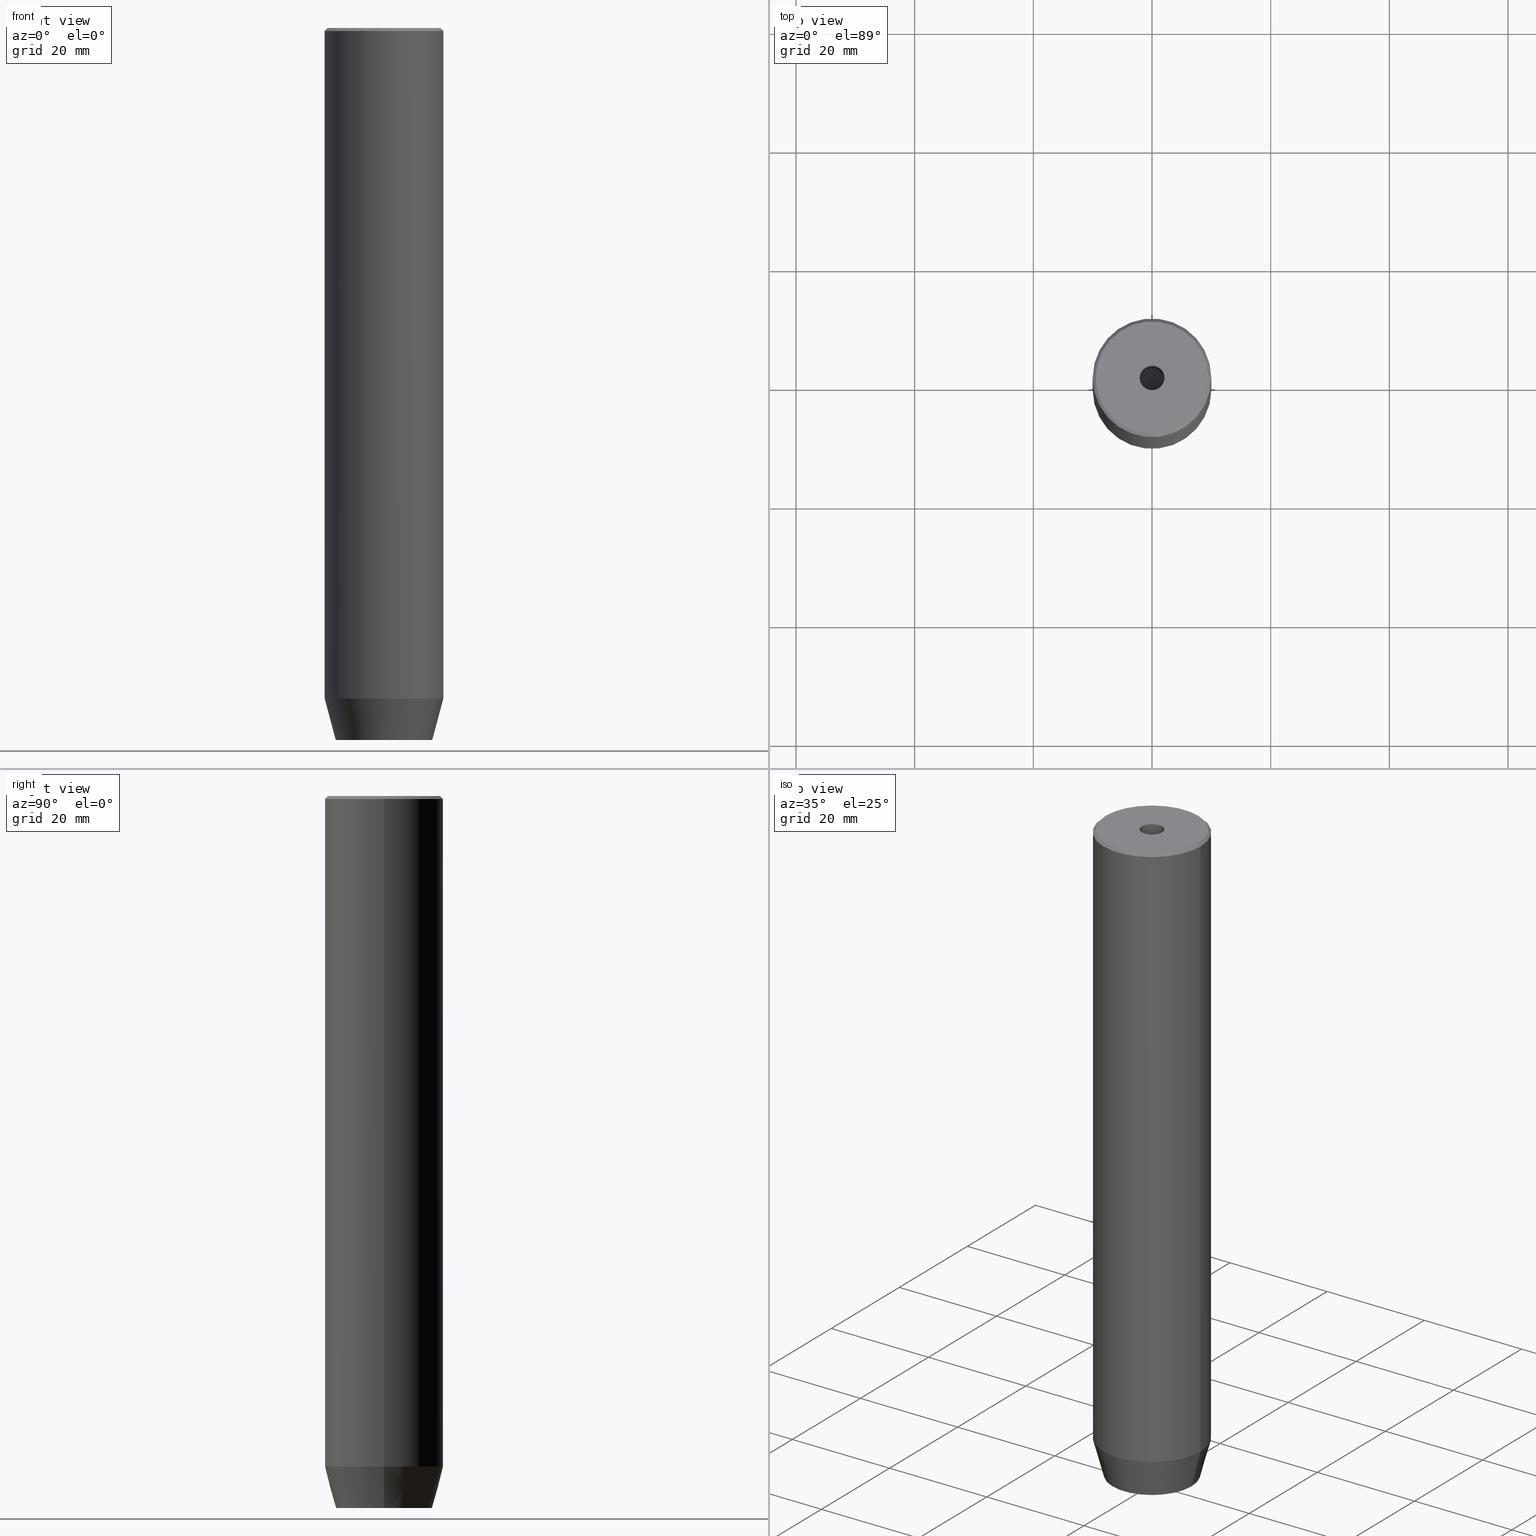
[diagram: canonical four-view strip — front | top / right | iso, engineering-drawing reading convention]
A machine part, canonical four-view strip (front | top / right | iso — engineering-drawing reading convention). The complete STEP part file that produces these views, byte-faithful:
ISO-10303-21;
HEADER;
FILE_DESCRIPTION (( 'STEP AP203' ),
    '1' );
FILE_NAME ('62bc.STEP',
    '2024-01-02T19:05:04',
    ( '' ),
    ( '' ),
    'SwSTEP 2.0',
    'SolidWorks 2019',
    '' );
FILE_SCHEMA (( 'CONFIG_CONTROL_DESIGN' ));
ENDSEC;

DATA;
#1 = VERTEX_POINT ( 'NONE', #94 ) ;
#2 = LINE ( 'NONE', #57, #301 ) ;
#3 = ADVANCED_FACE ( 'NONE', ( #39 ), #184, .T. ) ;
#4 = ORIENTED_EDGE ( 'NONE', *, *, #272, .T. ) ;
#5 = DIRECTION ( 'NONE',  ( -1.000000000000000000, 0.000000000000000000, -0.000000000000000000 ) ) ;
#6 = CC_DESIGN_SECURITY_CLASSIFICATION ( #474, ( #548 ) ) ;
#7 = ORIENTED_EDGE ( 'NONE', *, *, #308, .F. ) ;
#8 = CARTESIAN_POINT ( 'NONE',  ( 0.000000000000000000, 0.000000000000000000, -25.00000000000000000 ) ) ;
#9 = CARTESIAN_POINT ( 'NONE',  ( 0.000000000000000000, 4.618802153517006737, -117.2000000000000028 ) ) ;
#10 = ORIENTED_EDGE ( 'NONE', *, *, #241, .F. ) ;
#11 = EDGE_CURVE ( 'NONE', #503, #431, #248, .T. ) ;
#12 = CARTESIAN_POINT ( 'NONE',  ( 0.000000000000000000, 0.000000000000000000, 0.000000000000000000 ) ) ;
#13 = ORIENTED_EDGE ( 'NONE', *, *, #326, .F. ) ;
#14 = EDGE_LOOP ( 'NONE', ( #232, #7, #337, #369 ) ) ;
#15 = CARTESIAN_POINT ( 'NONE',  ( -2.099999999999998757, 2.571758278209440478E-16, -1.990051048614449116E-16 ) ) ;
#16 = CARTESIAN_POINT ( 'NONE',  ( 0.000000000000000000, 4.618802153517006737, -117.2000000000000028 ) ) ;
#17 = ORIENTED_EDGE ( 'NONE', *, *, #211, .F. ) ;
#18 = APPROVAL_ROLE ( '' ) ;
#19 = ORIENTED_EDGE ( 'NONE', *, *, #97, .F. ) ;
#20 = FACE_OUTER_BOUND ( 'NONE', #14, .T. ) ;
#21 = AXIS2_PLACEMENT_3D ( 'NONE', #352, #524, #520 ) ;
#22 = CARTESIAN_POINT ( 'NONE',  ( 10.00000000000000000, 0.000000000000000000, 0.000000000000000000 ) ) ;
#23 = VECTOR ( 'NONE', #476, 1000.000000000000000 ) ;
#24 = APPLICATION_PROTOCOL_DEFINITION ( 'international standard', 'config_control_design', 1994, #47 ) ;
#25 = DIRECTION ( 'NONE',  ( -1.000000000000000000, 0.000000000000000000, 0.000000000000000000 ) ) ;
#26 = APPROVAL_DATE_TIME ( #568, #205 ) ;
#27 = EDGE_CURVE ( 'NONE', #186, #104, #553, .T. ) ;
#28 = CARTESIAN_POINT ( 'NONE',  ( 2.000000000000000444, 3.464101615137754386, -117.2000000000000028 ) ) ;
#29 = CALENDAR_DATE ( 2024, 2, 1 ) ;
#30 = ORIENTED_EDGE ( 'NONE', *, *, #97, .T. ) ;
#31 = PRODUCT ( '62bc', '62bc', '', ( #554 ) ) ;
#32 = AXIS2_PLACEMENT_3D ( 'NONE', #8, #203, #200 ) ;
#33 = CARTESIAN_POINT ( 'NONE',  ( -4.000000000000000000, 2.309401076758503368, -120.0000000000000000 ) ) ;
#34 = DATE_TIME_ROLE ( 'creation_date' ) ;
#35 = DIRECTION ( 'NONE',  ( -0.000000000000000000, -0.000000000000000000, -1.000000000000000000 ) ) ;
#36 = ADVANCED_FACE ( 'NONE', ( #340 ), #99, .F. ) ;
#37 = DIRECTION ( 'NONE',  ( 1.000000000000000000, 0.000000000000000000, 0.000000000000000000 ) ) ;
#38 = ORIENTED_EDGE ( 'NONE', *, *, #149, .F. ) ;
#39 = FACE_OUTER_BOUND ( 'NONE', #295, .T. ) ;
#40 = VERTEX_POINT ( 'NONE', #136 ) ;
#41 = CARTESIAN_POINT ( 'NONE',  ( 2.099999999999996980, 0.000000000000000000, 0.000000000000000000 ) ) ;
#42 = CARTESIAN_POINT ( 'NONE',  ( -2.000000000000000888, -3.464101615137754386, -117.2000000000000028 ) ) ;
#43 = CIRCLE ( 'NONE', #32, 2.099999999999995648 ) ;
#44 = FACE_OUTER_BOUND ( 'NONE', #422, .T. ) ;
#45 = ADVANCED_FACE ( 'NONE', ( #322 ), #392, .T. ) ;
#46 = AXIS2_PLACEMENT_3D ( 'NONE', #377, #123, #492 ) ;
#47 = APPLICATION_CONTEXT ( 'configuration controlled 3d designs of mechanical parts and assemblies' ) ;
#48 = DIRECTION ( 'NONE',  ( 0.000000000000000000, -1.000000000000000000, 0.000000000000000000 ) ) ;
#49 = LINE ( 'NONE', #335, #381 ) ;
#50 = ORIENTED_EDGE ( 'NONE', *, *, #320, .F. ) ;
#51 = CONICAL_SURFACE ( 'NONE', #531, 10.00000000000000000, 0.2617993877991500740 ) ;
#52 = AXIS2_PLACEMENT_3D ( 'NONE', #465, #102, #151 ) ;
#53 = DIRECTION ( 'NONE',  ( -0.000000000000000000, -0.000000000000000000, 1.000000000000000000 ) ) ;
#54 = EDGE_CURVE ( 'NONE', #479, #506, #78, .T. ) ;
#55 = ORIENTED_EDGE ( 'NONE', *, *, #456, .F. ) ;
#56 = DIRECTION ( 'NONE',  ( 0.000000000000000000, 0.000000000000000000, 1.000000000000000000 ) ) ;
#57 = CARTESIAN_POINT ( 'NONE',  ( -4.000000000000000000, -2.309401076758503368, -117.2000000000000028 ) ) ;
#58 = LINE ( 'NONE', #9, #457 ) ;
#59 = VECTOR ( 'NONE', #539, 1000.000000000000114 ) ;
#60 = FACE_OUTER_BOUND ( 'NONE', #298, .T. ) ;
#61 = ORIENTED_EDGE ( 'NONE', *, *, #251, .F. ) ;
#62 = CARTESIAN_POINT ( 'NONE',  ( 0.000000000000000000, 0.000000000000000000, -25.00000000000000000 ) ) ;
#63 = EDGE_LOOP ( 'NONE', ( #473, #61, #523, #38 ) ) ;
#64 =( LENGTH_UNIT ( ) NAMED_UNIT ( * ) SI_UNIT ( .MILLI., .METRE. ) );
#65 = PLANE ( 'NONE',  #244 ) ;
#66 = VERTEX_POINT ( 'NONE', #443 ) ;
#67 = MANIFOLD_SOLID_BREP ( 'Vrt�k z�vitn�ku pro M5 z�vit1', #373 ) ;
#68 = FACE_OUTER_BOUND ( 'NONE', #489, .T. ) ;
#69 = DIRECTION ( 'NONE',  ( 0.000000000000000000, 0.000000000000000000, -1.000000000000000000 ) ) ;
#70 = ORIENTED_EDGE ( 'NONE', *, *, #536, .F. ) ;
#71 = CIRCLE ( 'NONE', #21, 10.00000000000000000 ) ;
#72 = LOCAL_TIME ( 20, 5, 4.000000000000000000, #270 ) ;
#73 = EDGE_CURVE ( 'NONE', #66, #312, #221, .T. ) ;
#74 = DIRECTION ( 'NONE',  ( 1.000000000000000000, 0.000000000000000000, 0.000000000000000000 ) ) ;
#75 = PERSON_AND_ORGANIZATION ( #98, #509 ) ;
#76 = DIRECTION ( 'NONE',  ( -0.8660254037844385966, 0.5000000000000001110, 0.000000000000000000 ) ) ;
#77 = APPROVAL_DATE_TIME ( #126, #421 ) ;
#78 = LINE ( 'NONE', #218, #345 ) ;
#79 = FACE_OUTER_BOUND ( 'NONE', #88, .T. ) ;
#80 = ADVANCED_FACE ( 'NONE', ( #580 ), #583, .F. ) ;
#81 = AXIS2_PLACEMENT_3D ( 'NONE', #353, #484, #74 ) ;
#82 = ORIENTED_EDGE ( 'NONE', *, *, #54, .T. ) ;
#83 = CARTESIAN_POINT ( 'NONE',  ( 10.00000000000000000, 0.000000000000000000, -112.9999999999999858 ) ) ;
#84 = AXIS2_PLACEMENT_3D ( 'NONE', #249, #423, #198 ) ;
#85 = ORIENTED_EDGE ( 'NONE', *, *, #505, .T. ) ;
#86 = LINE ( 'NONE', #243, #237 ) ;
#87 = EDGE_LOOP ( 'NONE', ( #4, #324, #267, #172 ) ) ;
#88 = EDGE_LOOP ( 'NONE', ( #113, #50, #17, #281 ) ) ;
#89 = DIRECTION ( 'NONE',  ( -0.000000000000000000, -0.000000000000000000, -1.000000000000000000 ) ) ;
#90 = DIRECTION ( 'NONE',  ( 1.000000000000000000, 0.000000000000000000, 0.000000000000000000 ) ) ;
#91 = AXIS2_PLACEMENT_3D ( 'NONE', #288, #454, #414 ) ;
#92 = VECTOR ( 'NONE', #393, 1000.000000000000000 ) ;
#93 = ADVANCED_FACE ( 'NONE', ( #68 ), #217, .F. ) ;
#94 = CARTESIAN_POINT ( 'NONE',  ( 2.168404344971008868E-16, 4.618802153517005848, -120.0000000000000000 ) ) ;
#95 = PLANE ( 'NONE',  #587 ) ;
#96 = DIRECTION ( 'NONE',  ( 1.000000000000000000, 0.000000000000000000, 0.000000000000000000 ) ) ;
#97 = EDGE_CURVE ( 'NONE', #246, #506, #263, .T. ) ;
#98 = PERSON ( 'NEUR�EN�', 'NEUR�EN�', 'NEUR�EN�', ('NEUR�EN�'), ('NEUR�EN�'), ('NEUR�EN�') ) ;
#99 = CYLINDRICAL_SURFACE ( 'NONE', #271, 2.099999999999996980 ) ;
#100 = DIRECTION ( 'NONE',  ( 1.000000000000000000, 0.000000000000000000, 0.000000000000000000 ) ) ;
#101 = AXIS2_PLACEMENT_3D ( 'NONE', #137, #383, #550 ) ;
#102 = DIRECTION ( 'NONE',  ( -0.000000000000000000, -0.000000000000000000, 1.000000000000000000 ) ) ;
#103 = DIRECTION ( 'NONE',  ( -0.000000000000000000, -0.000000000000000000, 1.000000000000000000 ) ) ;
#104 = VERTEX_POINT ( 'NONE', #33 ) ;
#105 = CARTESIAN_POINT ( 'NONE',  ( 2.099999999999995648, 0.000000000000000000, -25.00000000000000000 ) ) ;
#106 = DIRECTION ( 'NONE',  ( 1.000000000000000000, 0.000000000000000000, 0.000000000000000000 ) ) ;
#107 = CARTESIAN_POINT ( 'NONE',  ( 0.000000000000000000, 0.000000000000000000, -120.0000000000000000 ) ) ;
#108 = EDGE_CURVE ( 'NONE', #289, #506, #269, .T. ) ;
#109 = DIRECTION ( 'NONE',  ( 1.000000000000000000, 0.000000000000000000, 0.000000000000000000 ) ) ;
#110 = AXIS2_PLACEMENT_3D ( 'NONE', #107, #160, #257 ) ;
#111 = CARTESIAN_POINT ( 'NONE',  ( 2.099999999999998757, 0.000000000000000000, -1.990051048614449116E-16 ) ) ;
#112 = CARTESIAN_POINT ( 'NONE',  ( -4.000000000000000000, -2.309401076758503368, -117.2000000000000028 ) ) ;
#113 = ORIENTED_EDGE ( 'NONE', *, *, #430, .T. ) ;
#114 = ORIENTED_EDGE ( 'NONE', *, *, #395, .F. ) ;
#115 = LINE ( 'NONE', #177, #586 ) ;
#116 = SHAPE_DEFINITION_REPRESENTATION ( #438, #491 ) ;
#117 = EDGE_LOOP ( 'NONE', ( #266, #70 ) ) ;
#118 = EDGE_CURVE ( 'NONE', #316, #529, #265, .T. ) ;
#119 = AXIS2_PLACEMENT_3D ( 'NONE', #28, #434, #76 ) ;
#120 = CARTESIAN_POINT ( 'NONE',  ( -10.00000000000000000, 1.224646799147353256E-15, -112.9999999999999858 ) ) ;
#121 = VECTOR ( 'NONE', #371, 1000.000000000000000 ) ;
#122 = CALENDAR_DATE ( 2024, 2, 1 ) ;
#123 = DIRECTION ( 'NONE',  ( 0.5000000000000003331, -0.8660254037844385966, 0.000000000000000000 ) ) ;
#124 = EDGE_LOOP ( 'NONE', ( #327, #402, #361, #280, #114, #199 ) ) ;
#125 = VERTEX_POINT ( 'NONE', #111 ) ;
#126 = DATE_AND_TIME ( #355, #305 ) ;
#127 = DIRECTION ( 'NONE',  ( 0.8660254037844385966, -0.5000000000000001110, 0.000000000000000000 ) ) ;
#128 = ORIENTED_EDGE ( 'NONE', *, *, #194, .F. ) ;
#129 = EDGE_CURVE ( 'NONE', #191, #125, #173, .T. ) ;
#130 = APPROVAL_ROLE ( '' ) ;
#131 = CYLINDRICAL_SURFACE ( 'NONE', #494, 10.00000000000000000 ) ;
#132 = VERTEX_POINT ( 'NONE', #567 ) ;
#133 = PLANE ( 'NONE',  #303 ) ;
#134 = VECTOR ( 'NONE', #157, 1000.000000000000000 ) ;
#135 = ORIENTED_EDGE ( 'NONE', *, *, #512, .T. ) ;
#136 = CARTESIAN_POINT ( 'NONE',  ( -10.00000000000000000, 1.224646799147353256E-15, -112.9999999999999858 ) ) ;
#137 = CARTESIAN_POINT ( 'NONE',  ( 0.000000000000000000, 0.000000000000000000, -112.9999999999999858 ) ) ;
#138 = AXIS2_PLACEMENT_3D ( 'NONE', #518, #426, #5 ) ;
#139 = VERTEX_POINT ( 'NONE', #526 ) ;
#140 = CARTESIAN_POINT ( 'NONE',  ( 0.000000000000000000, 0.000000000000000000, 0.000000000000000000 ) ) ;
#141 = CARTESIAN_POINT ( 'NONE',  ( -4.000000000000000000, 2.309401076758503368, -117.2000000000000028 ) ) ;
#142 = ORIENTED_EDGE ( 'NONE', *, *, #73, .T. ) ;
#143 = EDGE_CURVE ( 'NONE', #182, #40, #569, .T. ) ;
#144 = FACE_OUTER_BOUND ( 'NONE', #117, .T. ) ;
#145 = VERTEX_POINT ( 'NONE', #16 ) ;
#146 = CARTESIAN_POINT ( 'NONE',  ( 4.000000000000000000, 2.309401076758503368, -117.2000000000000028 ) ) ;
#147 = VECTOR ( 'NONE', #230, 1000.000000000000000 ) ;
#148 = DIRECTION ( 'NONE',  ( 0.2588190451025213501, 0.000000000000000000, 0.9659258262890680902 ) ) ;
#149 = EDGE_CURVE ( 'NONE', #506, #246, #462, .T. ) ;
#150 = EDGE_LOOP ( 'NONE', ( #10, #82, #19, #128 ) ) ;
#151 = DIRECTION ( 'NONE',  ( 1.000000000000000000, 0.000000000000000000, 0.000000000000000000 ) ) ;
#152 = VECTOR ( 'NONE', #35, 1000.000000000000000 ) ;
#153 = CIRCLE ( 'NONE', #52, 8.124355652982135467 ) ;
#154 = CARTESIAN_POINT ( 'NONE',  ( 4.000000000000000000, -2.309401076758502480, -120.0000000000000000 ) ) ;
#155 = VECTOR ( 'NONE', #224, 1000.000000000000114 ) ;
#156 = ADVANCED_FACE ( 'NONE', ( #168, #176 ), #133, .T. ) ;
#157 = DIRECTION ( 'NONE',  ( -0.000000000000000000, -0.000000000000000000, 1.000000000000000000 ) ) ;
#158 = CARTESIAN_POINT ( 'NONE',  ( 4.336808689942017736E-16, -4.618802153517006737, -117.2000000000000028 ) ) ;
#159 = CARTESIAN_POINT ( 'NONE',  ( -4.000000000000000000, 0.000000000000000000, -120.0000000000000000 ) ) ;
#160 = DIRECTION ( 'NONE',  ( -0.000000000000000000, -0.000000000000000000, 1.000000000000000000 ) ) ;
#161 = ORIENTED_EDGE ( 'NONE', *, *, #490, .T. ) ;
#162 = ORIENTED_EDGE ( 'NONE', *, *, #227, .T. ) ;
#163 = LINE ( 'NONE', #349, #183 ) ;
#164 = AXIS2_PLACEMENT_3D ( 'NONE', #475, #276, #453 ) ;
#165 = CC_DESIGN_APPROVAL ( #205, ( #548 ) ) ;
#166 = FACE_OUTER_BOUND ( 'NONE', #240, .T. ) ;
#167 = CC_DESIGN_PERSON_AND_ORGANIZATION_ASSIGNMENT ( #75, #358, ( #31 ) ) ;
#168 = FACE_BOUND ( 'NONE', #436, .T. ) ;
#169 = DIRECTION ( 'NONE',  ( 0.000000000000000000, 0.000000000000000000, -1.000000000000000000 ) ) ;
#170 = CALENDAR_DATE ( 2024, 2, 1 ) ;
#171 = ORIENTED_EDGE ( 'NONE', *, *, #374, .F. ) ;
#172 = ORIENTED_EDGE ( 'NONE', *, *, #118, .T. ) ;
#173 = CIRCLE ( 'NONE', #549, 2.099999999999998757 ) ;
#174 = DATE_TIME_ROLE ( 'classification_date' ) ;
#175 = PERSON_AND_ORGANIZATION ( #98, #509 ) ;
#176 = FACE_OUTER_BOUND ( 'NONE', #360, .T. ) ;
#177 = CARTESIAN_POINT ( 'NONE',  ( -2.000000000000000000, 3.464101615137754830, -117.2000000000000028 ) ) ;
#178 = ORIENTED_EDGE ( 'NONE', *, *, #259, .T. ) ;
#179 = ORIENTED_EDGE ( 'NONE', *, *, #73, .F. ) ;
#180 = DIRECTION ( 'NONE',  ( 0.000000000000000000, 0.000000000000000000, 1.000000000000000000 ) ) ;
#181 = UNCERTAINTY_MEASURE_WITH_UNIT (LENGTH_MEASURE( 1.000000000000000082E-05 ), #64, 'distance_accuracy_value', 'NONE');
#182 = VERTEX_POINT ( 'NONE', #204 ) ;
#183 = VECTOR ( 'NONE', #351, 1000.000000000000114 ) ;
#184 = CYLINDRICAL_SURFACE ( 'NONE', #556, 10.00000000000000000 ) ;
#185 =( GEOMETRIC_REPRESENTATION_CONTEXT ( 3 ) GLOBAL_UNCERTAINTY_ASSIGNED_CONTEXT ( ( #181 ) ) GLOBAL_UNIT_ASSIGNED_CONTEXT ( ( #64, #346, #472 ) ) REPRESENTATION_CONTEXT ( 'NONE', 'WORKASPACE' ) );
#186 = VERTEX_POINT ( 'NONE', #325 ) ;
#187 = DIRECTION ( 'NONE',  ( -0.000000000000000000, 0.000000000000000000, -1.000000000000000000 ) ) ;
#188 = EDGE_CURVE ( 'NONE', #1, #139, #409, .T. ) ;
#189 = DIRECTION ( 'NONE',  ( 1.000000000000000000, 0.000000000000000000, 0.000000000000000000 ) ) ;
#190 = LINE ( 'NONE', #41, #121 ) ;
#191 = VERTEX_POINT ( 'NONE', #15 ) ;
#192 = FACE_OUTER_BOUND ( 'NONE', #212, .T. ) ;
#193 = CIRCLE ( 'NONE', #563, 9.499999999999980460 ) ;
#194 = EDGE_CURVE ( 'NONE', #132, #246, #450, .T. ) ;
#195 = VECTOR ( 'NONE', #578, 999.9999999999998863 ) ;
#196 = CYLINDRICAL_SURFACE ( 'NONE', #389, 2.099999999999996980 ) ;
#197 = CC_DESIGN_PERSON_AND_ORGANIZATION_ASSIGNMENT ( #216, #404, ( #548 ) ) ;
#198 = DIRECTION ( 'NONE',  ( -1.000000000000000000, 0.000000000000000000, 0.000000000000000000 ) ) ;
#199 = ORIENTED_EDGE ( 'NONE', *, *, #188, .F. ) ;
#200 = DIRECTION ( 'NONE',  ( 1.000000000000000000, 0.000000000000000000, 0.000000000000000000 ) ) ;
#201 = LOCAL_TIME ( 20, 5, 4.000000000000000000, #447 ) ;
#202 = EDGE_CURVE ( 'NONE', #145, #503, #488, .T. ) ;
#203 = DIRECTION ( 'NONE',  ( -0.000000000000000000, -0.000000000000000000, 1.000000000000000000 ) ) ;
#204 = CARTESIAN_POINT ( 'NONE',  ( -8.124355652982135467, 1.109796706851640556E-15, -120.0000000000000000 ) ) ;
#205 = APPROVAL ( #535, 'NEUR�EN�' ) ;
#206 = CARTESIAN_POINT ( 'NONE',  ( -4.000000000000000000, 0.000000000000000000, -117.2000000000000028 ) ) ;
#207 = VERTEX_POINT ( 'NONE', #154 ) ;
#208 = LINE ( 'NONE', #344, #367 ) ;
#209 = DATE_AND_TIME ( #170, #420 ) ;
#210 = ORIENTED_EDGE ( 'NONE', *, *, #11, .T. ) ;
#211 = EDGE_CURVE ( 'NONE', #348, #145, #115, .T. ) ;
#212 = EDGE_LOOP ( 'NONE', ( #135, #343, #495, #485 ) ) ;
#213 = DIRECTION ( 'NONE',  ( -0.5000000000000000000, 0.8660254037844387076, 0.000000000000000000 ) ) ;
#214 = VECTOR ( 'NONE', #225, 1000.000000000000000 ) ;
#215 = CARTESIAN_POINT ( 'NONE',  ( 0.000000000000000000, 0.000000000000000000, -1.990051048614449116E-16 ) ) ;
#216 = PERSON_AND_ORGANIZATION ( #98, #509 ) ;
#217 = PLANE ( 'NONE',  #119 ) ;
#218 = CARTESIAN_POINT ( 'NONE',  ( 9.499999999999980460, 1.163414459189983119E-15, 0.000000000000000000 ) ) ;
#219 = CC_DESIGN_PERSON_AND_ORGANIZATION_ASSIGNMENT ( #487, #522, ( #474 ) ) ;
#220 = PERSON_AND_ORGANIZATION ( #98, #509 ) ;
#221 = LINE ( 'NONE', #532, #155 ) ;
#222 = PERSON_AND_ORGANIZATION_ROLE ( 'creator' ) ;
#223 = APPROVAL_PERSON_ORGANIZATION ( #175, #421, #18 ) ;
#224 = DIRECTION ( 'NONE',  ( 0.8571673007021108903, 0.000000000000000000, 0.5150380749100565980 ) ) ;
#225 = DIRECTION ( 'NONE',  ( -0.000000000000000000, -0.000000000000000000, 1.000000000000000000 ) ) ;
#226 = LOCAL_TIME ( 20, 5, 4.000000000000000000, #228 ) ;
#227 = EDGE_CURVE ( 'NONE', #413, #312, #419, .T. ) ;
#228 = COORDINATED_UNIVERSAL_TIME_OFFSET ( 1, 0, .AHEAD. ) ;
#229 = ORIENTED_EDGE ( 'NONE', *, *, #291, .T. ) ;
#230 = DIRECTION ( 'NONE',  ( 0.8660254037844385966, -0.5000000000000001110, 0.000000000000000000 ) ) ;
#231 = DIRECTION ( 'NONE',  ( -0.8660254037844384856, 0.5000000000000002220, 0.000000000000000000 ) ) ;
#232 = ORIENTED_EDGE ( 'NONE', *, *, #395, .T. ) ;
#233 = ORIENTED_EDGE ( 'NONE', *, *, #251, .T. ) ;
#234 = FACE_OUTER_BOUND ( 'NONE', #370, .T. ) ;
#235 = CC_DESIGN_DATE_AND_TIME_ASSIGNMENT ( #209, #34, ( #408 ) ) ;
#236 = AXIS2_PLACEMENT_3D ( 'NONE', #576, #239, #187 ) ;
#237 = VECTOR ( 'NONE', #148, 1000.000000000000000 ) ;
#238 = CARTESIAN_POINT ( 'NONE',  ( 0.000000000000000000, 0.000000000000000000, -112.9999999999999858 ) ) ;
#239 = DIRECTION ( 'NONE',  ( 1.000000000000000000, 0.000000000000000000, -0.000000000000000000 ) ) ;
#240 = EDGE_LOOP ( 'NONE', ( #275, #382, #30, #262 ) ) ;
#241 = EDGE_CURVE ( 'NONE', #479, #132, #193, .T. ) ;
#242 = CARTESIAN_POINT ( 'NONE',  ( 2.000000000000000888, -3.464101615137754386, -120.0000000000000000 ) ) ;
#243 = CARTESIAN_POINT ( 'NONE',  ( 10.00000000000000000, 0.000000000000000000, -112.9999999999999858 ) ) ;
#244 = AXIS2_PLACEMENT_3D ( 'NONE', #391, #213, #397 ) ;
#245 = VECTOR ( 'NONE', #89, 1000.000000000000000 ) ;
#246 = VERTEX_POINT ( 'NONE', #538 ) ;
#247 = ORIENTED_EDGE ( 'NONE', *, *, #336, .F. ) ;
#248 = LINE ( 'NONE', #470, #372 ) ;
#249 = CARTESIAN_POINT ( 'NONE',  ( 0.000000000000000000, 0.000000000000000000, 0.000000000000000000 ) ) ;
#250 = DIRECTION ( 'NONE',  ( 1.000000000000000000, 0.000000000000000000, 0.000000000000000000 ) ) ;
#251 = EDGE_CURVE ( 'NONE', #132, #479, #502, .T. ) ;
#252 = CARTESIAN_POINT ( 'NONE',  ( 4.336808689942017736E-16, -4.618802153517006737, -120.0000000000000000 ) ) ;
#253 = VECTOR ( 'NONE', #48, 1000.000000000000000 ) ;
#254 = ORIENTED_EDGE ( 'NONE', *, *, #403, .T. ) ;
#255 = DIRECTION ( 'NONE',  ( -0.000000000000000000, -0.000000000000000000, 1.000000000000000000 ) ) ;
#256 = ORIENTED_EDGE ( 'NONE', *, *, #441, .T. ) ;
#257 = DIRECTION ( 'NONE',  ( 1.000000000000000000, 0.000000000000000000, 0.000000000000000000 ) ) ;
#258 = DIRECTION ( 'NONE',  ( -0.000000000000000000, -0.000000000000000000, -1.000000000000000000 ) ) ;
#259 = EDGE_CURVE ( 'NONE', #40, #289, #71, .T. ) ;
#260 = CARTESIAN_POINT ( 'NONE',  ( 0.000000000000000000, 0.000000000000000000, 0.000000000000000000 ) ) ;
#261 = ORIENTED_EDGE ( 'NONE', *, *, #108, .T. ) ;
#262 = ORIENTED_EDGE ( 'NONE', *, *, #108, .F. ) ;
#263 = CIRCLE ( 'NONE', #573, 10.00000000000000000 ) ;
#264 = APPROVAL_PERSON_ORGANIZATION ( #442, #205, #315 ) ;
#265 = LINE ( 'NONE', #158, #541 ) ;
#266 = ORIENTED_EDGE ( 'NONE', *, *, #512, .F. ) ;
#267 = ORIENTED_EDGE ( 'NONE', *, *, #291, .F. ) ;
#268 = ORIENTED_EDGE ( 'NONE', *, *, #505, .F. ) ;
#269 = LINE ( 'NONE', #22, #214 ) ;
#270 = COORDINATED_UNIVERSAL_TIME_OFFSET ( 1, 0, .AHEAD. ) ;
#271 = AXIS2_PLACEMENT_3D ( 'NONE', #463, #53, #425 ) ;
#272 = EDGE_CURVE ( 'NONE', #529, #186, #208, .T. ) ;
#273 = DIRECTION ( 'NONE',  ( 1.000000000000000000, 0.000000000000000000, 0.000000000000000000 ) ) ;
#274 = COORDINATED_UNIVERSAL_TIME_OFFSET ( 1, 0, .AHEAD. ) ;
#275 = ORIENTED_EDGE ( 'NONE', *, *, #341, .T. ) ;
#276 = DIRECTION ( 'NONE',  ( -0.000000000000000000, -0.000000000000000000, 1.000000000000000000 ) ) ;
#277 = CONICAL_SURFACE ( 'NONE', #84, 9.499999999999980460, 0.7853981633974552734 ) ;
#278 = CARTESIAN_POINT ( 'NONE',  ( 0.000000000000000000, 0.000000000000000000, 0.000000000000000000 ) ) ;
#279 = DIRECTION ( 'NONE',  ( 0.8660254037844387076, 0.5000000000000001110, 0.000000000000000000 ) ) ;
#280 = ORIENTED_EDGE ( 'NONE', *, *, #467, .F. ) ;
#281 = ORIENTED_EDGE ( 'NONE', *, *, #577, .T. ) ;
#282 = ORIENTED_EDGE ( 'NONE', *, *, #202, .T. ) ;
#283 = ADVANCED_FACE ( 'NONE', ( #166 ), #131, .T. ) ;
#284 = DIRECTION ( 'NONE',  ( -0.000000000000000000, -0.000000000000000000, 1.000000000000000000 ) ) ;
#285 = DIRECTION ( 'NONE',  ( -0.000000000000000000, -0.000000000000000000, 1.000000000000000000 ) ) ;
#286 = APPROVAL ( #449, 'NEUR�EN�' ) ;
#287 = CIRCLE ( 'NONE', #357, 2.099999999999998757 ) ;
#288 = CARTESIAN_POINT ( 'NONE',  ( 0.000000000000000000, 8.124355652982135467, -120.0000000000000000 ) ) ;
#289 = VERTEX_POINT ( 'NONE', #83 ) ;
#290 = DIRECTION ( 'NONE',  ( -0.5000000000000003331, -0.8660254037844385966, 0.000000000000000000 ) ) ;
#291 = EDGE_CURVE ( 'NONE', #316, #544, #307, .T. ) ;
#292 = CARTESIAN_POINT ( 'NONE',  ( 0.000000000000000000, 0.000000000000000000, -25.00000000000000000 ) ) ;
#293 = FACE_OUTER_BOUND ( 'NONE', #150, .T. ) ;
#294 = ORIENTED_EDGE ( 'NONE', *, *, #188, .T. ) ;
#295 = EDGE_LOOP ( 'NONE', ( #55, #178, #261, #424 ) ) ;
#296 = ADVANCED_FACE ( 'NONE', ( #79 ), #65, .F. ) ;
#297 = DIRECTION ( 'NONE',  ( 1.000000000000000000, 0.000000000000000000, 0.000000000000000000 ) ) ;
#298 = EDGE_LOOP ( 'NONE', ( #497, #282, #210, #256, #229, #85 ) ) ;
#299 = DIRECTION ( 'NONE',  ( -0.000000000000000000, -0.000000000000000000, -1.000000000000000000 ) ) ;
#300 = DIRECTION ( 'NONE',  ( -0.000000000000000000, -0.000000000000000000, 1.000000000000000000 ) ) ;
#301 = VECTOR ( 'NONE', #299, 1000.000000000000000 ) ;
#302 = FACE_OUTER_BOUND ( 'NONE', #385, .T. ) ;
#303 = AXIS2_PLACEMENT_3D ( 'NONE', #534, #376, #297 ) ;
#304 = ORIENTED_EDGE ( 'NONE', *, *, #118, .F. ) ;
#305 = LOCAL_TIME ( 20, 5, 4.000000000000000000, #530 ) ;
#306 = ORIENTED_EDGE ( 'NONE', *, *, #143, .F. ) ;
#307 = LINE ( 'NONE', #433, #440 ) ;
#308 = EDGE_CURVE ( 'NONE', #431, #207, #429, .T. ) ;
#309 = DIRECTION ( 'NONE',  ( 1.000000000000000000, 0.000000000000000000, 0.000000000000000000 ) ) ;
#310 = DIRECTION ( 'NONE',  ( 0.000000000000000000, 1.000000000000000000, 0.000000000000000000 ) ) ;
#311 = FACE_OUTER_BOUND ( 'NONE', #486, .T. ) ;
#312 = VERTEX_POINT ( 'NONE', #105 ) ;
#313 = CARTESIAN_POINT ( 'NONE',  ( 0.000000000000000000, 0.000000000000000000, -112.9999999999999858 ) ) ;
#314 = CC_DESIGN_PERSON_AND_ORGANIZATION_ASSIGNMENT ( #220, #222, ( #548 ) ) ;
#315 = APPROVAL_ROLE ( '' ) ;
#316 = VERTEX_POINT ( 'NONE', #468 ) ;
#317 = CALENDAR_DATE ( 2024, 2, 1 ) ;
#318 = DIRECTION ( 'NONE',  ( -0.2588190451025213501, 3.169619151431772337E-17, 0.9659258262890680902 ) ) ;
#319 = PERSON_AND_ORGANIZATION_ROLE ( 'creator' ) ;
#320 = EDGE_CURVE ( 'NONE', #145, #1, #58, .T. ) ;
#321 = SECURITY_CLASSIFICATION_LEVEL ( 'unclassified' ) ;
#322 = FACE_OUTER_BOUND ( 'NONE', #63, .T. ) ;
#323 = DIRECTION ( 'NONE',  ( -0.000000000000000000, -0.000000000000000000, 1.000000000000000000 ) ) ;
#324 = ORIENTED_EDGE ( 'NONE', *, *, #499, .F. ) ;
#325 = CARTESIAN_POINT ( 'NONE',  ( -4.000000000000000000, -2.309401076758503368, -120.0000000000000000 ) ) ;
#326 = EDGE_CURVE ( 'NONE', #413, #191, #557, .T. ) ;
#327 = ORIENTED_EDGE ( 'NONE', *, *, #430, .F. ) ;
#328 = CARTESIAN_POINT ( 'NONE',  ( 8.124355652982135467, 0.000000000000000000, -120.0000000000000000 ) ) ;
#329 = EDGE_LOOP ( 'NONE', ( #444, #304, #365, #339 ) ) ;
#330 = DIRECTION ( 'NONE',  ( -0.000000000000000000, -0.000000000000000000, 1.000000000000000000 ) ) ;
#331 = PLANE ( 'NONE',  #399 ) ;
#332 = DIRECTION ( 'NONE',  ( -0.000000000000000000, -0.000000000000000000, 1.000000000000000000 ) ) ;
#333 = ORIENTED_EDGE ( 'NONE', *, *, #403, .F. ) ;
#334 = CONICAL_SURFACE ( 'NONE', #451, 2.099999999999995648, 1.029744258676651647 ) ;
#335 = CARTESIAN_POINT ( 'NONE',  ( -10.00000000000000000, 1.224646799147353256E-15, 0.000000000000000000 ) ) ;
#336 = EDGE_CURVE ( 'NONE', #66, #413, #163, .T. ) ;
#337 = ORIENTED_EDGE ( 'NONE', *, *, #11, .F. ) ;
#338 = CARTESIAN_POINT ( 'NONE',  ( -4.000000000000000000, 0.000000000000000000, -117.2000000000000028 ) ) ;
#339 = ORIENTED_EDGE ( 'NONE', *, *, #308, .T. ) ;
#340 = FACE_OUTER_BOUND ( 'NONE', #432, .T. ) ;
#341 = EDGE_CURVE ( 'NONE', #289, #40, #508, .T. ) ;
#342 = APPROVAL_PERSON_ORGANIZATION ( #362, #286, #130 ) ;
#343 = ORIENTED_EDGE ( 'NONE', *, *, #143, .T. ) ;
#344 = CARTESIAN_POINT ( 'NONE',  ( -2.000000000000000888, -3.464101615137754386, -120.0000000000000000 ) ) ;
#345 = VECTOR ( 'NONE', #528, 1000.000000000000000 ) ;
#346 =( NAMED_UNIT ( * ) PLANE_ANGLE_UNIT ( ) SI_UNIT ( $, .RADIAN. ) );
#347 = ADVANCED_FACE ( 'NONE', ( #20 ), #416, .F. ) ;
#348 = VERTEX_POINT ( 'NONE', #141 ) ;
#349 = CARTESIAN_POINT ( 'NONE',  ( -2.099999999999995648, 2.571758278209436040E-16, -25.00000000000000000 ) ) ;
#350 = CARTESIAN_POINT ( 'NONE',  ( -4.000000000000000000, 2.309401076758503368, -117.2000000000000028 ) ) ;
#351 = DIRECTION ( 'NONE',  ( -0.8571673007021108903, 1.049727191138616847E-16, 0.5150380749100565980 ) ) ;
#352 = CARTESIAN_POINT ( 'NONE',  ( 0.000000000000000000, 0.000000000000000000, -112.9999999999999858 ) ) ;
#353 = CARTESIAN_POINT ( 'NONE',  ( 0.000000000000000000, 0.000000000000000000, -0.5000000000000125455 ) ) ;
#354 = ADVANCED_FACE ( 'NONE', ( #234 ), #51, .T. ) ;
#355 = CALENDAR_DATE ( 2024, 2, 1 ) ;
#356 = ORIENTED_EDGE ( 'NONE', *, *, #536, .T. ) ;
#357 = AXIS2_PLACEMENT_3D ( 'NONE', #501, #284, #90 ) ;
#358 = PERSON_AND_ORGANIZATION_ROLE ( 'design_owner' ) ;
#359 = ORIENTED_EDGE ( 'NONE', *, *, #577, .F. ) ;
#360 = EDGE_LOOP ( 'NONE', ( #233, #481 ) ) ;
#361 = ORIENTED_EDGE ( 'NONE', *, *, #272, .F. ) ;
#362 = PERSON_AND_ORGANIZATION ( #98, #509 ) ;
#363 = DIRECTION ( 'NONE',  ( 1.000000000000000000, 0.000000000000000000, 0.000000000000000000 ) ) ;
#364 = ADVANCED_FACE ( 'NONE', ( #547 ), #331, .F. ) ;
#365 = ORIENTED_EDGE ( 'NONE', *, *, #441, .F. ) ;
#366 = DIRECTION ( 'NONE',  ( -0.000000000000000000, -0.000000000000000000, 1.000000000000000000 ) ) ;
#367 = VECTOR ( 'NONE', #477, 1000.000000000000114 ) ;
#368 = CARTESIAN_POINT ( 'NONE',  ( 4.000000000000000000, -2.309401076758502480, -117.2000000000000028 ) ) ;
#369 = ORIENTED_EDGE ( 'NONE', *, *, #448, .T. ) ;
#370 = EDGE_LOOP ( 'NONE', ( #306, #356, #161, #519 ) ) ;
#371 = DIRECTION ( 'NONE',  ( -0.000000000000000000, -0.000000000000000000, 1.000000000000000000 ) ) ;
#372 = VECTOR ( 'NONE', #558, 1000.000000000000000 ) ;
#373 = CLOSED_SHELL ( 'NONE', ( #561, #415, #584, #480, #283, #386, #156, #3, #354, #45, #296, #364, #460, #80, #347, #93, #521, #552, #36 ) ) ;
#374 = EDGE_CURVE ( 'NONE', #125, #191, #287, .T. ) ;
#375 = CARTESIAN_POINT ( 'NONE',  ( 2.000000000000000888, -3.464101615137754386, -117.2000000000000028 ) ) ;
#376 = DIRECTION ( 'NONE',  ( 0.000000000000000000, -0.000000000000000000, 1.000000000000000000 ) ) ;
#377 = CARTESIAN_POINT ( 'NONE',  ( 2.000000000000000888, -3.464101615137754386, -117.2000000000000028 ) ) ;
#378 = CC_DESIGN_APPROVAL ( #421, ( #408 ) ) ;
#379 = ORIENTED_EDGE ( 'NONE', *, *, #571, .T. ) ;
#380 = VECTOR ( 'NONE', #127, 1000.000000000000000 ) ;
#381 = VECTOR ( 'NONE', #285, 1000.000000000000000 ) ;
#382 = ORIENTED_EDGE ( 'NONE', *, *, #456, .T. ) ;
#383 = DIRECTION ( 'NONE',  ( -0.000000000000000000, -0.000000000000000000, 1.000000000000000000 ) ) ;
#384 = LINE ( 'NONE', #206, #92 ) ;
#385 = EDGE_LOOP ( 'NONE', ( #398, #396, #466, #333 ) ) ;
#386 = ADVANCED_FACE ( 'NONE', ( #461, #144 ), #546, .T. ) ;
#387 = ORIENTED_EDGE ( 'NONE', *, *, #320, .T. ) ;
#388 = CARTESIAN_POINT ( 'NONE',  ( 0.000000000000000000, 0.000000000000000000, -25.00000000000000000 ) ) ;
#389 = AXIS2_PLACEMENT_3D ( 'NONE', #12, #559, #511 ) ;
#390 = CARTESIAN_POINT ( 'NONE',  ( 10.00000000000000000, 0.000000000000000000, -0.5000000000000125455 ) ) ;
#391 = CARTESIAN_POINT ( 'NONE',  ( -2.000000000000000000, 3.464101615137754830, -117.2000000000000028 ) ) ;
#392 = CONICAL_SURFACE ( 'NONE', #417, 9.499999999999980460, 0.7853981633974552734 ) ;
#393 = DIRECTION ( 'NONE',  ( 0.000000000000000000, 1.000000000000000000, 0.000000000000000000 ) ) ;
#394 = VERTEX_POINT ( 'NONE', #328 ) ;
#395 = EDGE_CURVE ( 'NONE', #139, #207, #582, .T. ) ;
#396 = ORIENTED_EDGE ( 'NONE', *, *, #326, .T. ) ;
#397 = DIRECTION ( 'NONE',  ( -0.8660254037844385966, -0.4999999999999999445, 0.000000000000000000 ) ) ;
#398 = ORIENTED_EDGE ( 'NONE', *, *, #227, .F. ) ;
#399 = AXIS2_PLACEMENT_3D ( 'NONE', #338, #507, #180 ) ;
#400 = CIRCLE ( 'NONE', #110, 8.124355652982135467 ) ;
#401 = CARTESIAN_POINT ( 'NONE',  ( 2.000000000000000444, 3.464101615137754386, -117.2000000000000028 ) ) ;
#402 = ORIENTED_EDGE ( 'NONE', *, *, #27, .F. ) ;
#403 = EDGE_CURVE ( 'NONE', #312, #125, #190, .T. ) ;
#404 = PERSON_AND_ORGANIZATION_ROLE ( 'design_supplier' ) ;
#405 = ORIENTED_EDGE ( 'NONE', *, *, #336, .T. ) ;
#406 = CONICAL_SURFACE ( 'NONE', #101, 10.00000000000000000, 0.2617993877991500740 ) ;
#407 = APPROVAL_DATE_TIME ( #435, #286 ) ;
#408 = PRODUCT_DEFINITION ( 'NEZN�M�', '', #548, #428 ) ;
#409 = LINE ( 'NONE', #513, #147 ) ;
#410 = CARTESIAN_POINT ( 'NONE',  ( 4.000000000000000000, -2.309401076758502480, -117.2000000000000028 ) ) ;
#411 = APPLICATION_CONTEXT ( 'configuration controlled 3d designs of mechanical parts and assemblies' ) ;
#412 = CARTESIAN_POINT ( 'NONE',  ( -2.099999999999995648, 2.571758278209436040E-16, -25.00000000000000000 ) ) ;
#413 = VERTEX_POINT ( 'NONE', #412 ) ;
#414 = DIRECTION ( 'NONE',  ( -1.000000000000000000, 0.000000000000000000, -0.000000000000000000 ) ) ;
#415 = ADVANCED_FACE ( 'NONE', ( #44 ), #564, .F. ) ;
#416 = PLANE ( 'NONE',  #236 ) ;
#417 = AXIS2_PLACEMENT_3D ( 'NONE', #278, #69, #25 ) ;
#418 = CARTESIAN_POINT ( 'NONE',  ( 9.499999999999980460, 1.194030629168668286E-15, 0.000000000000000000 ) ) ;
#419 = CIRCLE ( 'NONE', #517, 2.099999999999995648 ) ;
#420 = LOCAL_TIME ( 20, 5, 4.000000000000000000, #274 ) ;
#421 = APPROVAL ( #537, 'NEUR�EN�' ) ;
#422 = EDGE_LOOP ( 'NONE', ( #179, #405, #162 ) ) ;
#423 = DIRECTION ( 'NONE',  ( 0.000000000000000000, 0.000000000000000000, -1.000000000000000000 ) ) ;
#424 = ORIENTED_EDGE ( 'NONE', *, *, #149, .T. ) ;
#425 = DIRECTION ( 'NONE',  ( 1.000000000000000000, 0.000000000000000000, 0.000000000000000000 ) ) ;
#426 = DIRECTION ( 'NONE',  ( 0.000000000000000000, 0.000000000000000000, -1.000000000000000000 ) ) ;
#427 = PLANE ( 'NONE',  #138 ) ;
#428 = DESIGN_CONTEXT ( 'detailed design', #47, 'design' ) ;
#429 = LINE ( 'NONE', #410, #152 ) ;
#430 = EDGE_CURVE ( 'NONE', #104, #1, #581, .T. ) ;
#431 = VERTEX_POINT ( 'NONE', #368 ) ;
#432 = EDGE_LOOP ( 'NONE', ( #13, #560, #254, #565 ) ) ;
#433 = CARTESIAN_POINT ( 'NONE',  ( -2.000000000000000888, -3.464101615137754386, -117.2000000000000028 ) ) ;
#434 = DIRECTION ( 'NONE',  ( 0.5000000000000001110, 0.8660254037844385966, -0.000000000000000000 ) ) ;
#435 = DATE_AND_TIME ( #317, #72 ) ;
#436 = EDGE_LOOP ( 'NONE', ( #171, #525 ) ) ;
#437 = DIRECTION ( 'NONE',  ( 1.000000000000000000, 0.000000000000000000, 0.000000000000000000 ) ) ;
#438 = PRODUCT_DEFINITION_SHAPE ( 'NONE', 'NONE',  #408 ) ;
#439 = CARTESIAN_POINT ( 'NONE',  ( 0.000000000000000000, 0.000000000000000000, -0.5000000000000125455 ) ) ;
#440 = VECTOR ( 'NONE', #231, 1000.000000000000114 ) ;
#441 = EDGE_CURVE ( 'NONE', #431, #316, #458, .T. ) ;
#442 = PERSON_AND_ORGANIZATION ( #98, #509 ) ;
#443 = CARTESIAN_POINT ( 'NONE',  ( -6.432287649943602629E-15, 0.000000000000000000, -26.26180729995787999 ) ) ;
#444 = ORIENTED_EDGE ( 'NONE', *, *, #467, .T. ) ;
#445 = DIRECTION ( 'NONE',  ( -0.000000000000000000, -0.000000000000000000, 1.000000000000000000 ) ) ;
#446 = VECTOR ( 'NONE', #310, 1000.000000000000000 ) ;
#447 = COORDINATED_UNIVERSAL_TIME_OFFSET ( 1, 0, .AHEAD. ) ;
#448 = EDGE_CURVE ( 'NONE', #503, #139, #543, .T. ) ;
#449 = APPROVAL_STATUS ( 'not_yet_approved' ) ;
#450 = LINE ( 'NONE', #515, #471 ) ;
#451 = AXIS2_PLACEMENT_3D ( 'NONE', #388, #103, #100 ) ;
#452 = ORIENTED_EDGE ( 'NONE', *, *, #27, .T. ) ;
#453 = DIRECTION ( 'NONE',  ( 1.000000000000000000, 0.000000000000000000, 0.000000000000000000 ) ) ;
#454 = DIRECTION ( 'NONE',  ( 0.000000000000000000, 0.000000000000000000, -1.000000000000000000 ) ) ;
#455 = LINE ( 'NONE', #242, #551 ) ;
#456 = EDGE_CURVE ( 'NONE', #40, #246, #49, .T. ) ;
#457 = VECTOR ( 'NONE', #258, 1000.000000000000000 ) ;
#458 = LINE ( 'NONE', #375, #59 ) ;
#459 = DIRECTION ( 'NONE',  ( 0.8660254037844384856, -0.5000000000000002220, 0.000000000000000000 ) ) ;
#460 = ADVANCED_FACE ( 'NONE', ( #504 ), #95, .F. ) ;
#461 = FACE_BOUND ( 'NONE', #124, .T. ) ;
#462 = CIRCLE ( 'NONE', #81, 10.00000000000000000 ) ;
#463 = CARTESIAN_POINT ( 'NONE',  ( 0.000000000000000000, 0.000000000000000000, 0.000000000000000000 ) ) ;
#464 = CARTESIAN_POINT ( 'NONE',  ( 0.000000000000000000, 0.000000000000000000, 0.000000000000000000 ) ) ;
#465 = CARTESIAN_POINT ( 'NONE',  ( 0.000000000000000000, 0.000000000000000000, -120.0000000000000000 ) ) ;
#466 = ORIENTED_EDGE ( 'NONE', *, *, #129, .T. ) ;
#467 = EDGE_CURVE ( 'NONE', #207, #529, #455, .T. ) ;
#468 = CARTESIAN_POINT ( 'NONE',  ( 4.336808689942017736E-16, -4.618802153517006737, -117.2000000000000028 ) ) ;
#469 = AXIS2_PLACEMENT_3D ( 'NONE', #292, #366, #96 ) ;
#470 = CARTESIAN_POINT ( 'NONE',  ( 4.000000000000000000, 0.000000000000000000, -117.2000000000000028 ) ) ;
#471 = VECTOR ( 'NONE', #574, 1000.000000000000000 ) ;
#472 =( NAMED_UNIT ( * ) SI_UNIT ( $, .STERADIAN. ) SOLID_ANGLE_UNIT ( ) );
#473 = ORIENTED_EDGE ( 'NONE', *, *, #54, .F. ) ;
#474 = SECURITY_CLASSIFICATION ( '', '', #321 ) ;
#475 = CARTESIAN_POINT ( 'NONE',  ( 0.000000000000000000, 0.000000000000000000, 0.000000000000000000 ) ) ;
#476 = DIRECTION ( 'NONE',  ( -0.000000000000000000, -0.000000000000000000, -1.000000000000000000 ) ) ;
#477 = DIRECTION ( 'NONE',  ( -0.8660254037844384856, 0.5000000000000002220, 0.000000000000000000 ) ) ;
#478 = ORIENTED_EDGE ( 'NONE', *, *, #202, .F. ) ;
#479 = VERTEX_POINT ( 'NONE', #418 ) ;
#480 = ADVANCED_FACE ( 'NONE', ( #192 ), #406, .T. ) ;
#481 = ORIENTED_EDGE ( 'NONE', *, *, #241, .T. ) ;
#482 = AXIS2_PLACEMENT_3D ( 'NONE', #313, #323, #437 ) ;
#483 = CC_DESIGN_DATE_AND_TIME_ASSIGNMENT ( #527, #174, ( #474 ) ) ;
#484 = DIRECTION ( 'NONE',  ( 0.000000000000000000, 0.000000000000000000, -1.000000000000000000 ) ) ;
#485 = ORIENTED_EDGE ( 'NONE', *, *, #490, .F. ) ;
#486 = EDGE_LOOP ( 'NONE', ( #247, #142, #379 ) ) ;
#487 = PERSON_AND_ORGANIZATION ( #98, #509 ) ;
#488 = LINE ( 'NONE', #401, #380 ) ;
#489 = EDGE_LOOP ( 'NONE', ( #294, #575, #478, #387 ) ) ;
#490 = EDGE_CURVE ( 'NONE', #394, #289, #86, .T. ) ;
#491 = ADVANCED_BREP_SHAPE_REPRESENTATION ( '62bc', ( #67, #579 ), #185 ) ;
#492 = DIRECTION ( 'NONE',  ( 0.8660254037844384856, 0.5000000000000002220, 0.000000000000000000 ) ) ;
#493 = CARTESIAN_POINT ( 'NONE',  ( 0.000000000000000000, 0.000000000000000000, 0.000000000000000000 ) ) ;
#494 = AXIS2_PLACEMENT_3D ( 'NONE', #493, #566, #37 ) ;
#495 = ORIENTED_EDGE ( 'NONE', *, *, #341, .F. ) ;
#496 = CARTESIAN_POINT ( 'NONE',  ( -2.000000000000000000, 3.464101615137754830, -120.0000000000000000 ) ) ;
#497 = ORIENTED_EDGE ( 'NONE', *, *, #211, .T. ) ;
#498 = EDGE_LOOP ( 'NONE', ( #452, #359, #268, #570 ) ) ;
#499 = EDGE_CURVE ( 'NONE', #544, #186, #2, .T. ) ;
#500 = CARTESIAN_POINT ( 'NONE',  ( 4.000000000000000000, 0.000000000000000000, -120.0000000000000000 ) ) ;
#501 = CARTESIAN_POINT ( 'NONE',  ( 0.000000000000000000, 0.000000000000000000, -1.990051048614449116E-16 ) ) ;
#502 = CIRCLE ( 'NONE', #164, 9.499999999999980460 ) ;
#503 = VERTEX_POINT ( 'NONE', #514 ) ;
#504 = FACE_OUTER_BOUND ( 'NONE', #87, .T. ) ;
#505 = EDGE_CURVE ( 'NONE', #544, #348, #384, .T. ) ;
#506 = VERTEX_POINT ( 'NONE', #390 ) ;
#507 = DIRECTION ( 'NONE',  ( -1.000000000000000000, 0.000000000000000000, 0.000000000000000000 ) ) ;
#508 = CIRCLE ( 'NONE', #482, 10.00000000000000000 ) ;
#509 = ORGANIZATION ( 'NEUR�EN�', 'NEUR�EN�', '' ) ;
#510 = APPLICATION_PROTOCOL_DEFINITION ( 'international standard', 'config_control_design', 1994, #411 ) ;
#511 = DIRECTION ( 'NONE',  ( 1.000000000000000000, 0.000000000000000000, 0.000000000000000000 ) ) ;
#512 = EDGE_CURVE ( 'NONE', #394, #182, #153, .T. ) ;
#513 = CARTESIAN_POINT ( 'NONE',  ( 2.000000000000000444, 3.464101615137754386, -120.0000000000000000 ) ) ;
#514 = CARTESIAN_POINT ( 'NONE',  ( 4.000000000000000000, 2.309401076758503368, -117.2000000000000028 ) ) ;
#515 = CARTESIAN_POINT ( 'NONE',  ( -9.499999999999980460, 0.000000000000000000, 0.000000000000000000 ) ) ;
#516 = DIRECTION ( 'NONE',  ( -0.000000000000000000, -0.000000000000000000, -1.000000000000000000 ) ) ;
#517 = AXIS2_PLACEMENT_3D ( 'NONE', #62, #255, #109 ) ;
#518 = CARTESIAN_POINT ( 'NONE',  ( 0.000000000000000000, 0.000000000000000000, -117.2000000000000028 ) ) ;
#519 = ORIENTED_EDGE ( 'NONE', *, *, #259, .F. ) ;
#520 = DIRECTION ( 'NONE',  ( 1.000000000000000000, 0.000000000000000000, 0.000000000000000000 ) ) ;
#521 = ADVANCED_FACE ( 'NONE', ( #60 ), #427, .T. ) ;
#522 = PERSON_AND_ORGANIZATION_ROLE ( 'classification_officer' ) ;
#523 = ORIENTED_EDGE ( 'NONE', *, *, #194, .T. ) ;
#524 = DIRECTION ( 'NONE',  ( -0.000000000000000000, -0.000000000000000000, 1.000000000000000000 ) ) ;
#525 = ORIENTED_EDGE ( 'NONE', *, *, #129, .F. ) ;
#526 = CARTESIAN_POINT ( 'NONE',  ( 4.000000000000000000, 2.309401076758503368, -120.0000000000000000 ) ) ;
#527 = DATE_AND_TIME ( #122, #226 ) ;
#528 = DIRECTION ( 'NONE',  ( 0.7071067811865524577, 8.659560562354993255E-17, -0.7071067811865426878 ) ) ;
#529 = VERTEX_POINT ( 'NONE', #252 ) ;
#530 = COORDINATED_UNIVERSAL_TIME_OFFSET ( 1, 0, .AHEAD. ) ;
#531 = AXIS2_PLACEMENT_3D ( 'NONE', #238, #332, #189 ) ;
#532 = CARTESIAN_POINT ( 'NONE',  ( 2.099999999999995648, 0.000000000000000000, -25.00000000000000000 ) ) ;
#533 = CC_DESIGN_APPROVAL ( #286, ( #474 ) ) ;
#534 = CARTESIAN_POINT ( 'NONE',  ( 0.000000000000000000, 0.000000000000000000, 0.000000000000000000 ) ) ;
#535 = APPROVAL_STATUS ( 'not_yet_approved' ) ;
#536 = EDGE_CURVE ( 'NONE', #182, #394, #400, .T. ) ;
#537 = APPROVAL_STATUS ( 'not_yet_approved' ) ;
#538 = CARTESIAN_POINT ( 'NONE',  ( -10.00000000000000000, 1.224646799147353256E-15, -0.5000000000000125455 ) ) ;
#539 = DIRECTION ( 'NONE',  ( -0.8660254037844384856, -0.5000000000000002220, 0.000000000000000000 ) ) ;
#540 = VECTOR ( 'NONE', #318, 1000.000000000000000 ) ;
#541 = VECTOR ( 'NONE', #516, 1000.000000000000000 ) ;
#542 = CC_DESIGN_PERSON_AND_ORGANIZATION_ASSIGNMENT ( #572, #319, ( #408 ) ) ;
#543 = LINE ( 'NONE', #146, #245 ) ;
#544 = VERTEX_POINT ( 'NONE', #112 ) ;
#545 = PRODUCT_RELATED_PRODUCT_CATEGORY ( 'detail', '', ( #31 ) ) ;
#546 = PLANE ( 'NONE',  #91 ) ;
#547 = FACE_OUTER_BOUND ( 'NONE', #498, .T. ) ;
#548 = PRODUCT_DEFINITION_FORMATION_WITH_SPECIFIED_SOURCE ( 'LIBOVOLN�', '', #31, .NOT_KNOWN. ) ;
#549 = AXIS2_PLACEMENT_3D ( 'NONE', #215, #445, #309 ) ;
#550 = DIRECTION ( 'NONE',  ( 1.000000000000000000, 0.000000000000000000, 0.000000000000000000 ) ) ;
#551 = VECTOR ( 'NONE', #585, 1000.000000000000114 ) ;
#552 = ADVANCED_FACE ( 'NONE', ( #311 ), #334, .F. ) ;
#553 = LINE ( 'NONE', #159, #446 ) ;
#554 = MECHANICAL_CONTEXT ( 'NONE', #411, 'mechanical' ) ;
#555 = LINE ( 'NONE', #350, #23 ) ;
#556 = AXIS2_PLACEMENT_3D ( 'NONE', #140, #330, #106 ) ;
#557 = LINE ( 'NONE', #562, #134 ) ;
#558 = DIRECTION ( 'NONE',  ( 0.000000000000000000, -1.000000000000000000, 0.000000000000000000 ) ) ;
#559 = DIRECTION ( 'NONE',  ( -0.000000000000000000, -0.000000000000000000, 1.000000000000000000 ) ) ;
#560 = ORIENTED_EDGE ( 'NONE', *, *, #571, .F. ) ;
#561 = ADVANCED_FACE ( 'NONE', ( #302 ), #196, .F. ) ;
#562 = CARTESIAN_POINT ( 'NONE',  ( -2.099999999999996980, 2.571758278209438013E-16, 0.000000000000000000 ) ) ;
#563 = AXIS2_PLACEMENT_3D ( 'NONE', #260, #300, #363 ) ;
#564 = CONICAL_SURFACE ( 'NONE', #469, 2.099999999999995648, 1.029744258676651647 ) ;
#565 = ORIENTED_EDGE ( 'NONE', *, *, #374, .T. ) ;
#566 = DIRECTION ( 'NONE',  ( -0.000000000000000000, -0.000000000000000000, 1.000000000000000000 ) ) ;
#567 = CARTESIAN_POINT ( 'NONE',  ( -9.499999999999980460, 0.000000000000000000, 0.000000000000000000 ) ) ;
#568 = DATE_AND_TIME ( #29, #201 ) ;
#569 = LINE ( 'NONE', #120, #540 ) ;
#570 = ORIENTED_EDGE ( 'NONE', *, *, #499, .T. ) ;
#571 = EDGE_CURVE ( 'NONE', #312, #413, #43, .T. ) ;
#572 = PERSON_AND_ORGANIZATION ( #98, #509 ) ;
#573 = AXIS2_PLACEMENT_3D ( 'NONE', #439, #169, #273 ) ;
#574 = DIRECTION ( 'NONE',  ( -0.7071067811865524577, 0.000000000000000000, -0.7071067811865426878 ) ) ;
#575 = ORIENTED_EDGE ( 'NONE', *, *, #448, .F. ) ;
#576 = CARTESIAN_POINT ( 'NONE',  ( 4.000000000000000000, 0.000000000000000000, -117.2000000000000028 ) ) ;
#577 = EDGE_CURVE ( 'NONE', #348, #104, #555, .T. ) ;
#578 = DIRECTION ( 'NONE',  ( 0.8660254037844387076, 0.5000000000000001110, 0.000000000000000000 ) ) ;
#579 = AXIS2_PLACEMENT_3D ( 'NONE', #464, #56, #250 ) ;
#580 = FACE_OUTER_BOUND ( 'NONE', #329, .T. ) ;
#581 = LINE ( 'NONE', #496, #195 ) ;
#582 = LINE ( 'NONE', #500, #253 ) ;
#583 = PLANE ( 'NONE',  #46 ) ;
#584 = ADVANCED_FACE ( 'NONE', ( #293 ), #277, .T. ) ;
#585 = DIRECTION ( 'NONE',  ( -0.8660254037844384856, -0.5000000000000002220, 0.000000000000000000 ) ) ;
#586 = VECTOR ( 'NONE', #279, 999.9999999999998863 ) ;
#587 = AXIS2_PLACEMENT_3D ( 'NONE', #42, #290, #459 ) ;
ENDSEC;
END-ISO-10303-21;
